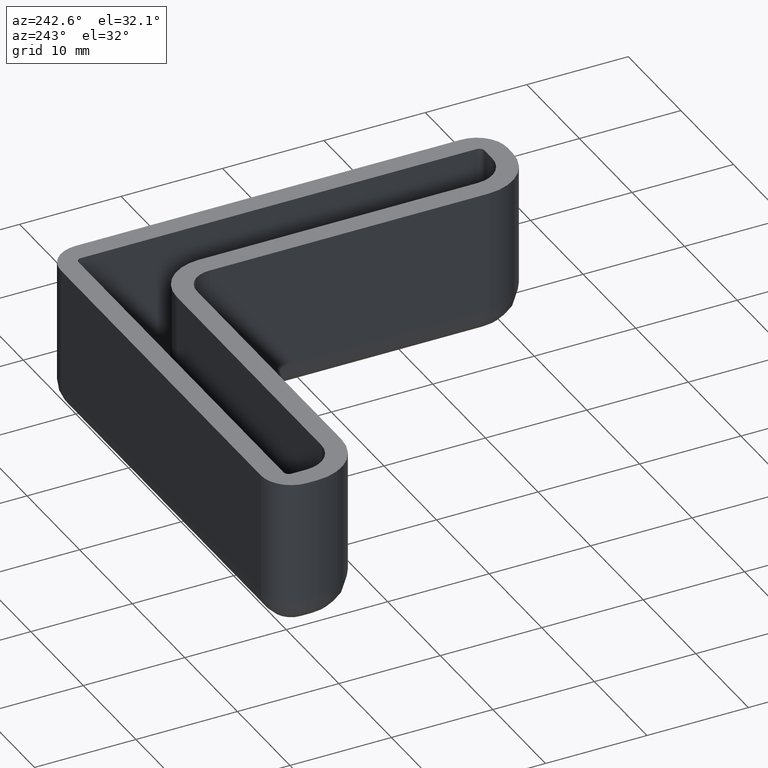
[diagram: clean part render]
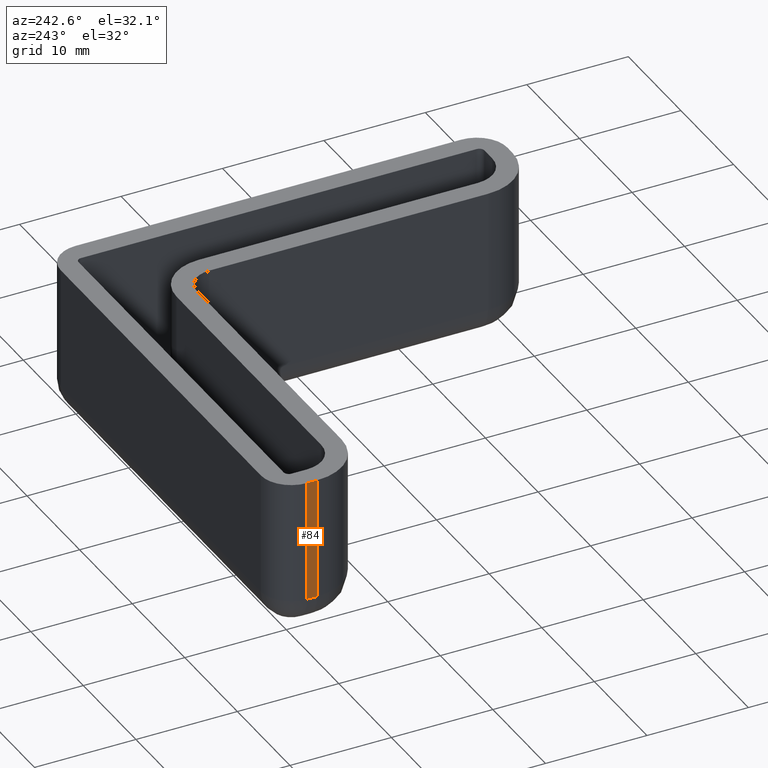
[diagram: same view with one face highlighted and labeled with its STEP entity id]
A machine part, auxiliary view. The second image highlights one B-rep face of the part: STEP entity #84.
In plain terms, the highlighted planar face has unit normal (-1, 0, 0).
Its self-contained STEP definition (entity closure, byte-faithful):
#84 = ADVANCED_FACE( '', ( #134 ), #135, .T. );
#134 = FACE_OUTER_BOUND( '', #213, .T. );
#135 = PLANE( '', #214 );
#213 = EDGE_LOOP( '', ( #408, #409, #410, #411 ) );
#214 = AXIS2_PLACEMENT_3D( '', #412, #413, #414 );
#408 = ORIENTED_EDGE( '', *, *, #663, .F. );
#409 = ORIENTED_EDGE( '', *, *, #664, .T. );
#410 = ORIENTED_EDGE( '', *, *, #665, .T. );
#411 = ORIENTED_EDGE( '', *, *, #619, .F. );
#412 = CARTESIAN_POINT( '', ( -42.0000000000000, -0.999999999999996, -15.0000000000000 ) );
#413 = DIRECTION( '', ( -1.00000000000000, 1.91849574421310E-016, 0.000000000000000 ) );
#414 = DIRECTION( '', ( 1.91849574421310E-016, 1.00000000000000, 0.000000000000000 ) );
#619 = EDGE_CURVE( '', #716, #718, #719, .T. );
#663 = EDGE_CURVE( '', #796, #716, #798, .T. );
#664 = EDGE_CURVE( '', #796, #799, #800, .T. );
#665 = EDGE_CURVE( '', #799, #718, #801, .T. );
#716 = VERTEX_POINT( '', #868 );
#718 = VERTEX_POINT( '', #870 );
#719 = LINE( '', #871, #872 );
#796 = VERTEX_POINT( '', #974 );
#798 = LINE( '', #976, #977 );
#799 = VERTEX_POINT( '', #978 );
#800 = LINE( '', #979, #980 );
#801 = LINE( '', #981, #982 );
#868 = CARTESIAN_POINT( '', ( -42.0000000000000, -0.999999999999996, 0.000000000000000 ) );
#870 = CARTESIAN_POINT( '', ( -42.0000000000000, -2.00000000000000, 0.000000000000000 ) );
#871 = CARTESIAN_POINT( '', ( -42.0000000000000, -0.999999999999996, 0.000000000000000 ) );
#872 = VECTOR( '', #1072, 1000.00000000000 );
#974 = CARTESIAN_POINT( '', ( -42.0000000000000, -0.999999999999996, -12.0000000000000 ) );
#976 = CARTESIAN_POINT( '', ( -42.0000000000000, -0.999999999999996, -15.0000000000000 ) );
#977 = VECTOR( '', #1152, 1000.00000000000 );
#978 = CARTESIAN_POINT( '', ( -42.0000000000000, -2.00000000000000, -12.0000000000000 ) );
#979 = CARTESIAN_POINT( '', ( -42.0000000000000, -2.00000000000000, -12.0000000000000 ) );
#980 = VECTOR( '', #1153, 1000.00000000000 );
#981 = CARTESIAN_POINT( '', ( -42.0000000000000, -2.00000000000000, -15.0000000000000 ) );
#982 = VECTOR( '', #1154, 1000.00000000000 );
#1072 = DIRECTION( '', ( -1.91849574421310E-016, -1.00000000000000, 0.000000000000000 ) );
#1152 = DIRECTION( '', ( 0.000000000000000, 0.000000000000000, 1.00000000000000 ) );
#1153 = DIRECTION( '', ( -1.91849574421310E-016, -1.00000000000000, 0.000000000000000 ) );
#1154 = DIRECTION( '', ( 0.000000000000000, 0.000000000000000, 1.00000000000000 ) );